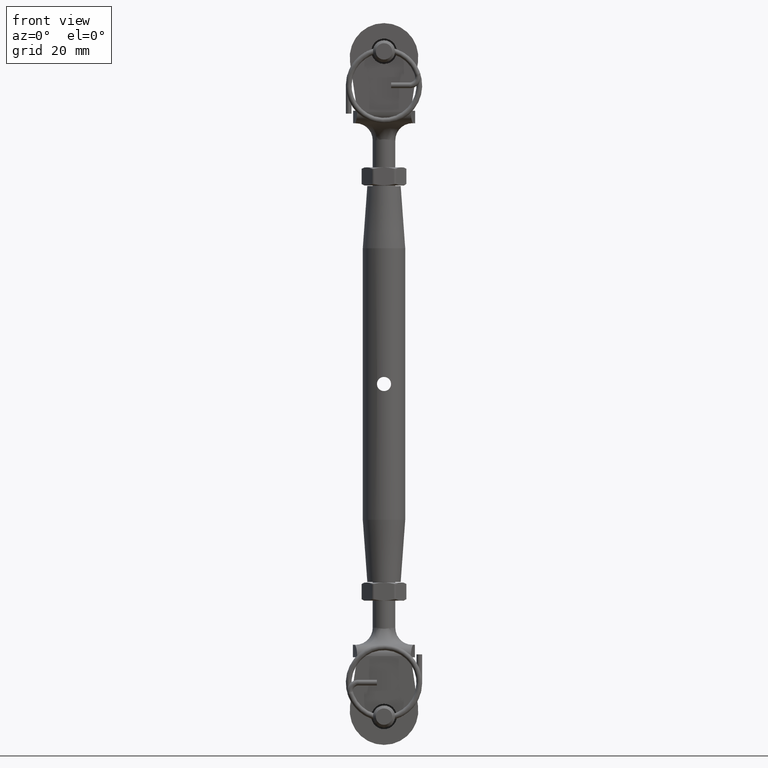
[diagram: clean part render]
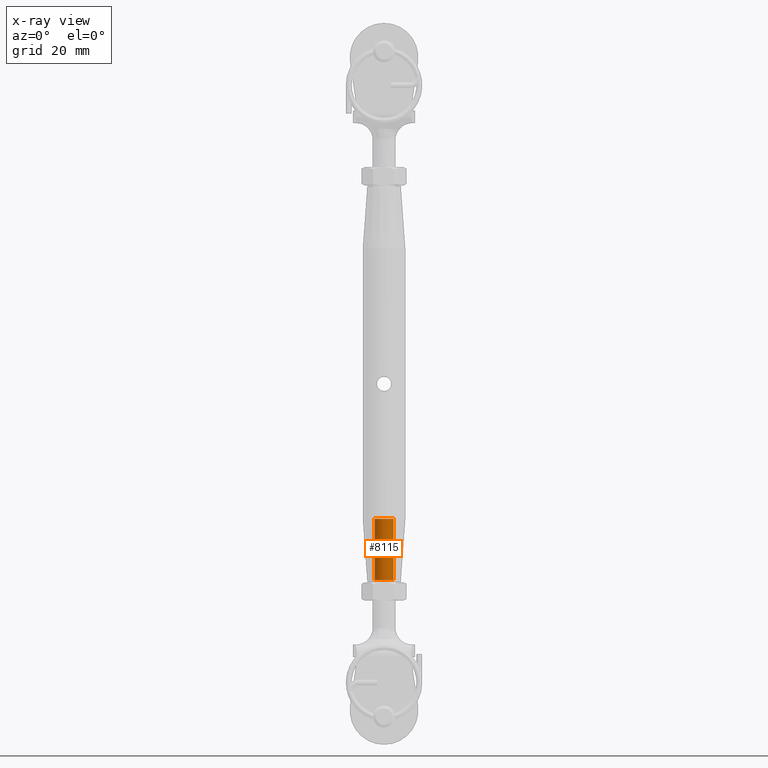
[diagram: x-ray — body ghosted, one internal face saturated and labeled with its STEP entity id]
A machine part, front view, then the same camera in x-ray: the body is ghosted and one INTERNAL B-rep face — a face not visible from any outside direction — is saturated and labeled: STEP entity #8115.
In plain terms, the highlighted cylindrical surface (edge-blend (fillet) strip) has radius 1.65 mm, axis along (-0, -0, -1).
Its self-contained STEP definition (entity closure, byte-faithful):
#860 = VERTEX_POINT ( 'NONE', #4465 ) ;
#1957 = EDGE_CURVE ( 'NONE', #26751, #860, #25254, .T. ) ;
#2811 = AXIS2_PLACEMENT_3D ( 'NONE', #9117, #15238, #19702 ) ;
#3351 = CIRCLE ( 'NONE', #5227, 1.649999999999996100 ) ;
#3757 = DIRECTION ( 'NONE',  ( -0.0000000000000000000, -0.0000000000000000000, -1.000000000000000000 ) ) ;
#3786 = VERTEX_POINT ( 'NONE', #22976 ) ;
#4428 = EDGE_CURVE ( 'NONE', #3786, #26751, #3351, .T. ) ;
#4465 = CARTESIAN_POINT ( 'NONE',  ( -1.649999999999996100, 0.0000000000000000000, -34.64999999999999900 ) ) ;
#5227 = AXIS2_PLACEMENT_3D ( 'NONE', #21400, #27856, #10521 ) ;
#5746 = VERTEX_POINT ( 'NONE', #24573 ) ;
#8115 = ADVANCED_FACE ( 'NONE', ( #26344 ), #12450, .F. ) ;
#9117 = CARTESIAN_POINT ( 'NONE',  ( 0.0000000000000000000, 0.0000000000000000000, -34.64999999999999900 ) ) ;
#9483 = ORIENTED_EDGE ( 'NONE', *, *, #27519, .T. ) ;
#9501 = LINE ( 'NONE', #10200, #18289 ) ;
#10200 = CARTESIAN_POINT ( 'NONE',  ( 1.649999999999996100, 2.020667218593128100E-016, -35.00000000000000000 ) ) ;
#10521 = DIRECTION ( 'NONE',  ( 1.000000000000000000, 0.0000000000000000000, 0.0000000000000000000 ) ) ;
#10633 = AXIS2_PLACEMENT_3D ( 'NONE', #22265, #11380, #11008 ) ;
#11008 = DIRECTION ( 'NONE',  ( -1.000000000000000000, 0.0000000000000000000, 0.0000000000000000000 ) ) ;
#11376 = VECTOR ( 'NONE', #26617, 1000.000000000000000 ) ;
#11380 = DIRECTION ( 'NONE',  ( -0.0000000000000000000, -0.0000000000000000000, -1.000000000000000000 ) ) ;
#11472 = CARTESIAN_POINT ( 'NONE',  ( -1.649999999999996100, 0.0000000000000000000, -35.00000000000000000 ) ) ;
#12083 = EDGE_LOOP ( 'NONE', ( #26312, #12385, #9483, #18518 ) ) ;
#12385 = ORIENTED_EDGE ( 'NONE', *, *, #23152, .T. ) ;
#12450 = CYLINDRICAL_SURFACE ( 'NONE', #10633, 1.649999999999996100 ) ;
#15238 = DIRECTION ( 'NONE',  ( -0.0000000000000000000, -0.0000000000000000000, -1.000000000000000000 ) ) ;
#18289 = VECTOR ( 'NONE', #3757, 1000.000000000000000 ) ;
#18518 = ORIENTED_EDGE ( 'NONE', *, *, #1957, .F. ) ;
#19702 = DIRECTION ( 'NONE',  ( -1.000000000000000000, 0.0000000000000000000, 0.0000000000000000000 ) ) ;
#21400 = CARTESIAN_POINT ( 'NONE',  ( 0.0000000000000000000, 0.0000000000000000000, -23.85000000000000100 ) ) ;
#22265 = CARTESIAN_POINT ( 'NONE',  ( 0.0000000000000000000, 0.0000000000000000000, -35.00000000000000000 ) ) ;
#22976 = CARTESIAN_POINT ( 'NONE',  ( 1.649999999999996100, 0.0000000000000000000, -23.85000000000000100 ) ) ;
#23152 = EDGE_CURVE ( 'NONE', #3786, #5746, #9501, .T. ) ;
#23272 = CIRCLE ( 'NONE', #2811, 1.649999999999996100 ) ;
#24573 = CARTESIAN_POINT ( 'NONE',  ( 1.649999999999996100, 2.234980408443918200E-016, -34.64999999999999900 ) ) ;
#25254 = LINE ( 'NONE', #11472, #11376 ) ;
#25510 = CARTESIAN_POINT ( 'NONE',  ( -1.649999999999996100, 2.541142108230755100E-016, -23.85000000000000100 ) ) ;
#26312 = ORIENTED_EDGE ( 'NONE', *, *, #4428, .F. ) ;
#26344 = FACE_OUTER_BOUND ( 'NONE', #12083, .T. ) ;
#26617 = DIRECTION ( 'NONE',  ( -0.0000000000000000000, -0.0000000000000000000, -1.000000000000000000 ) ) ;
#26751 = VERTEX_POINT ( 'NONE', #25510 ) ;
#27519 = EDGE_CURVE ( 'NONE', #5746, #860, #23272, .T. ) ;
#27856 = DIRECTION ( 'NONE',  ( 0.0000000000000000000, 0.0000000000000000000, -1.000000000000000000 ) ) ;